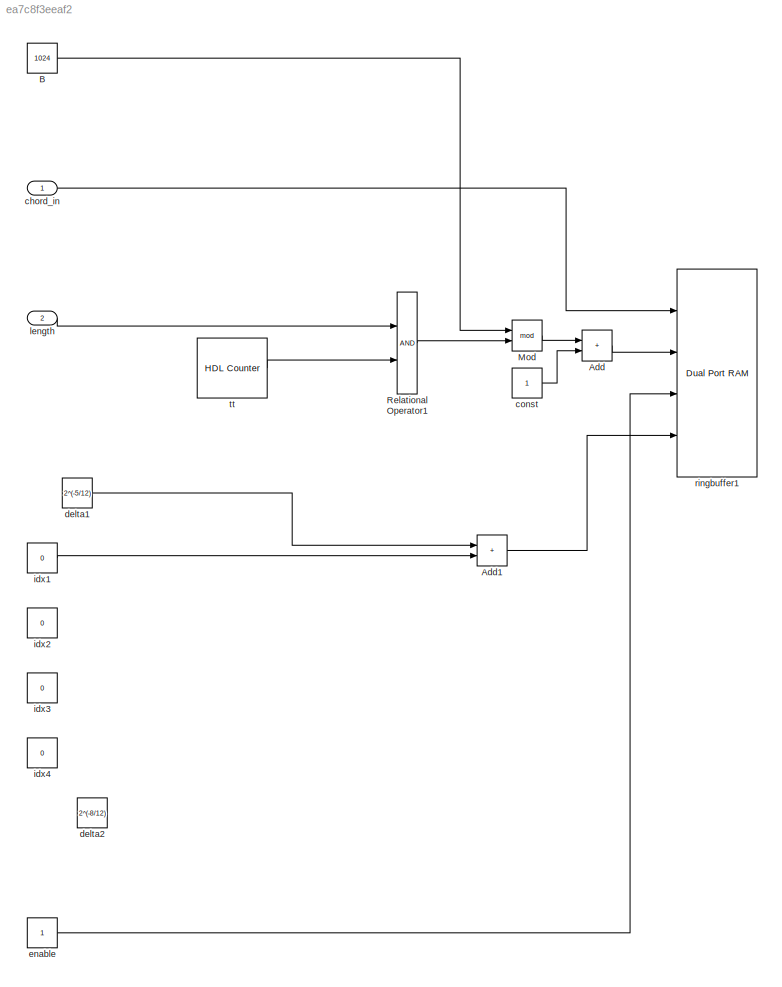
MODEL slx_ea7c8f3eeaf2
KIND model
CONFIG AbsTol = auto
CONFIG EnableMultiTasking = off
CONFIG FixedStep = auto
CONFIG MaxStep = auto
CONFIG MinStep = auto
CONFIG RelTol = 1e-3
CONFIG SampleTimeConstraint = Unconstrained
CONFIG SolverName = VariableStepAuto
CONFIG StartTime = 0.0
CONFIG StopTime = 10.0
BLOCK [Sum] Add
  IconShape = rectangular
  Ports = [2, 1]
BLOCK [Sum] Add1
  IconShape = rectangular
  Ports = [2, 1]
BLOCK [Constant] B
  SampleTime = -1
  Value = 1024
BLOCK [Math] Mod
  Operator = mod
  Ports = [2, 1]
BLOCK [RelationalOperator] Relational Operator1
  InputSameDT = off
  OutDataTypeStr = boolean
  Ports = [2, 1]
BLOCK [Inport] chord_in
BLOCK [Constant] const
BLOCK [Constant] delta1
  Value = 2^(-5/12)
BLOCK [Constant] delta2
  Value = 2^(-8/12)
BLOCK [Constant] enable
BLOCK [Constant] idx1
  Value = 0
BLOCK [Constant] idx2
  Value = 0
BLOCK [Constant] idx3
  Value = 0
BLOCK [Constant] idx4
  Value = 0
BLOCK [Inport] length
  Port = 2
BLOCK [Reference] ringbuffer1  REF=hdlsllib/HDL RAMs/Dual Port RAM
  Ports = [4, 2]
  SourceBlock = hdlsllib/HDL RAMs/Dual Port RAM
  SourceProductBaseCode = SL
  SourceType = Dual-port RAM
BLOCK [Reference] tt  REF=hdlsllib/Sources/HDL Counter
  Ports = [0, 1]
  SourceBlock = hdlsllib/Sources/HDL Counter
  SourceProductBaseCode = SL
  SourceType = HDL Counter
LINE Add1:1 -> ringbuffer1:4
LINE Add:1 -> ringbuffer1:2
LINE B:1 -> Mod:1
LINE Mod:1 -> Add:1
LINE Relational Operator1:1 -> Mod:2
LINE chord_in:1 -> ringbuffer1:1
LINE const:1 -> Add:2
LINE delta1:1 -> Add1:1
LINE enable:1 -> ringbuffer1:3
LINE idx1:1 -> Add1:2
LINE length:1 -> Relational Operator1:1
LINE tt:1 -> Relational Operator1:2
